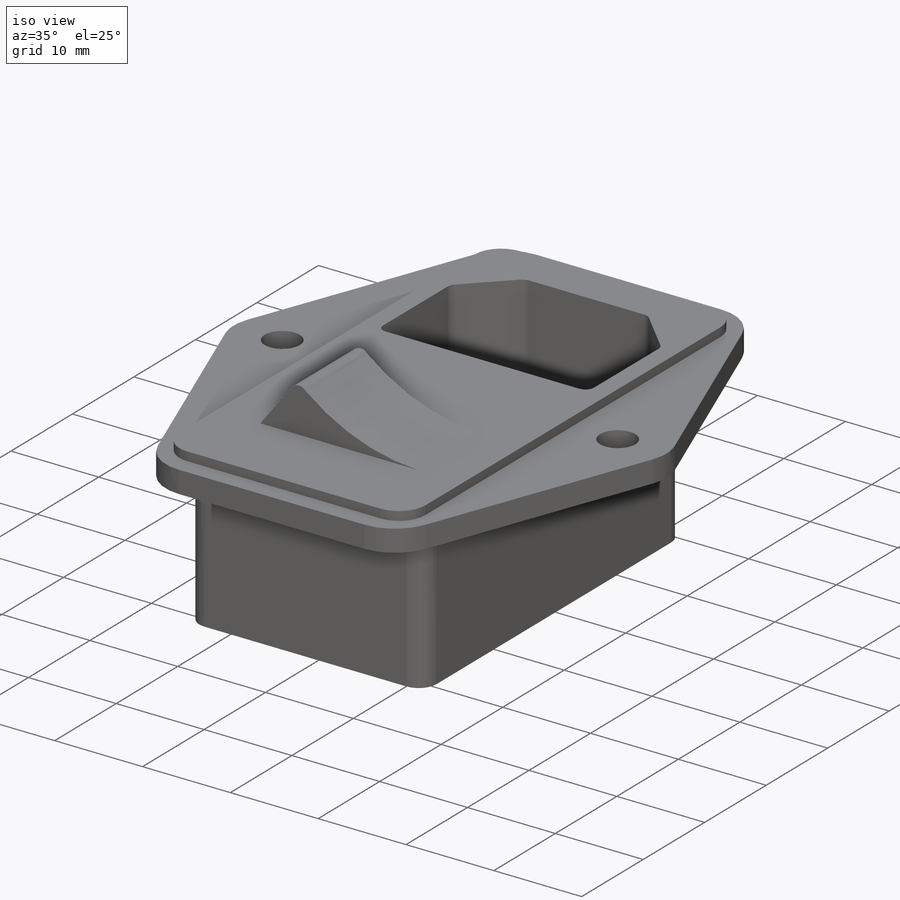
[diagram: iso view]
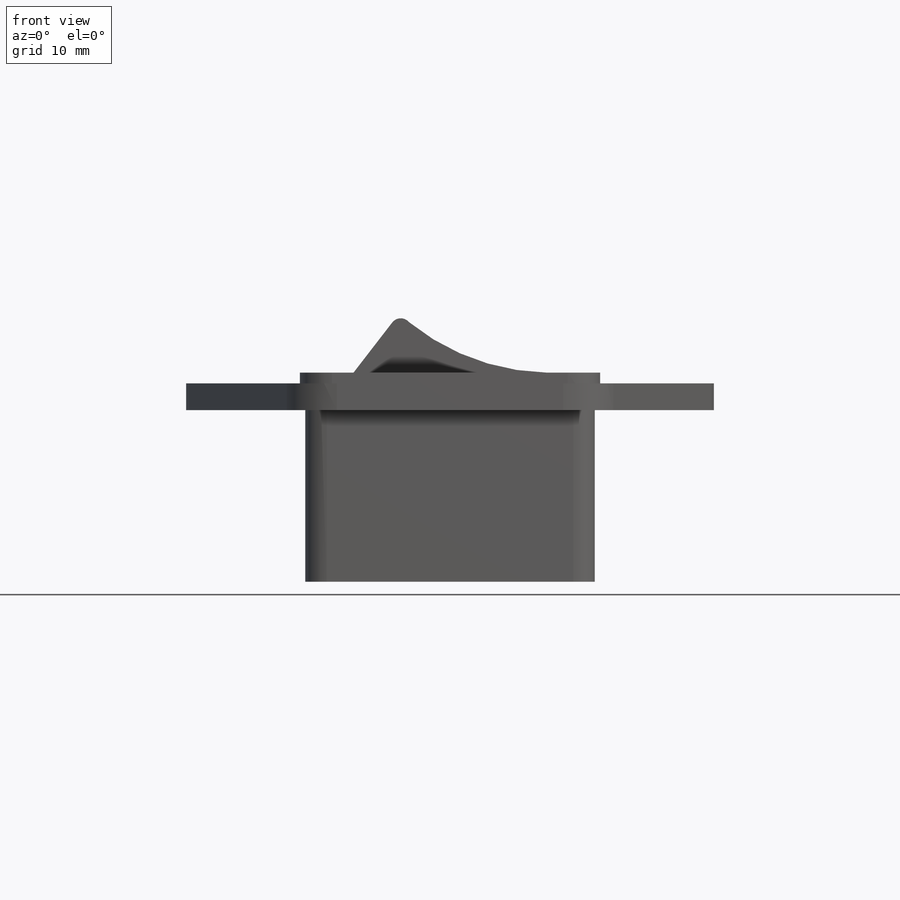
[diagram: front view]
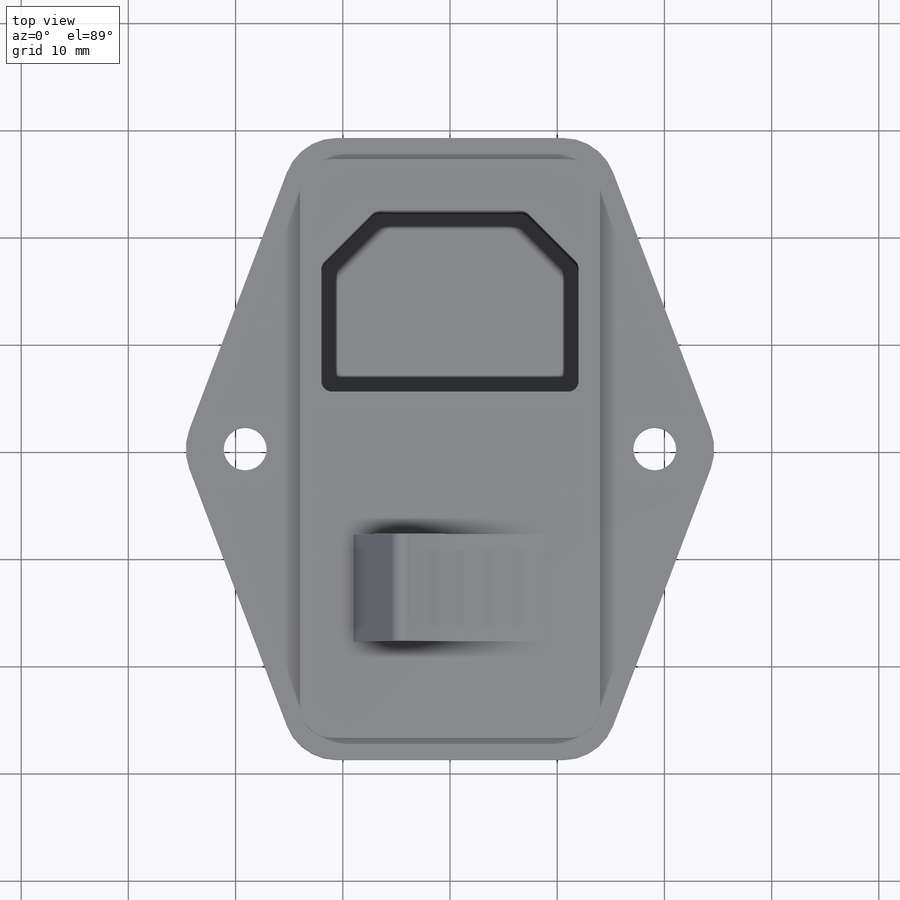
[diagram: top view]
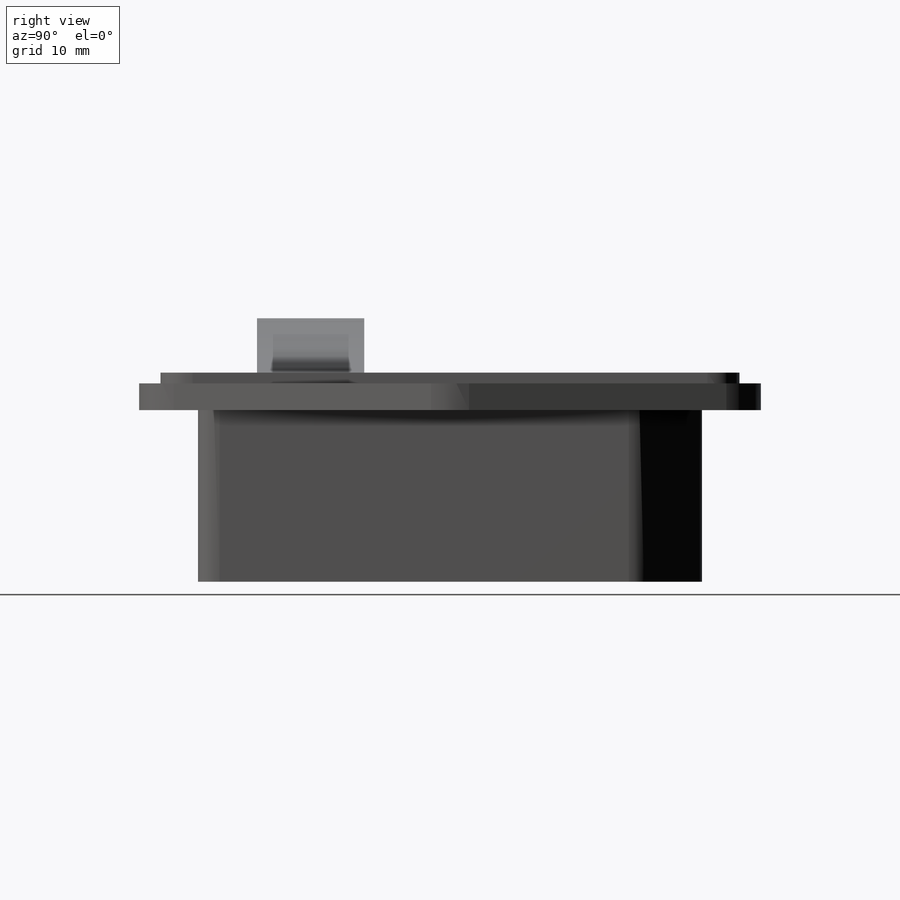
[diagram: right view]
SOLIDWORKS PART (.sldprt)
format: sldprt  version: not decoded by parser v0  size: 287,232 bytes
history: native  units: mm
features: sketch x5, extrude x4, fillet x3, material x1, cut_extrude x1, mirror x1 (+12 scaffold rows collapsed)
feature tree (27):
  scaffold x12  (default folders/planes/origin — collapsed)
  material  "Material <not specified>"
  sketch  "Sketch1"  dims[c1.D1=4.0mm c1.D2=~11.756223mm c2.D1=4.0mm c2.D2=38.2mm c2.D3=58.0mm c2.D4=28.0mm c2.D5=54.0mm c3.D4=28.0mm c3.D6=50.0mm c4.D4=14.0mm]
  extrude  "Boss-Extrude1"  Depth=2.5mm
  fillet  "Fillet1"  Radius=5mm
  sketch  "Sketch2"  dims[D3=3.0mm D1=54.0mm D2=14.0mm]
  extrude  "Boss-Extrude2"  Depth=1mm
  sketch  "Sketch3"  dims[c1.D1=47.0mm c1.D2=13.5mm c1.D3=7.5mm c1.D4=6.0mm c2.D1=47.0mm]
  extrude  "Boss-Extrude3"  Depth=16mm
  fillet  "Fillet2"  Radius=2mm
  sketch  "Sketch5"  dims[c1.D1=12.0mm c1.D2=16.5mm c1.D3=5.0mm c1.D4=5.0mm c2.D2=4.8mm c2.D5=16.9mm]
  cut_extrude  "Cut-Extrude1"  Depth=18mm
  fillet  "Fillet3"  Radius=1mm
  mirror  "Mirror1"
  sketch  "Sketch6"  dims[D1=1.0mm D2=18.0mm]
  extrude  "Boss-Extrude4"  Depth=10mm
decode coverage: 13 of 14 modeling features carry decoded parameters
note: ~ marks probable driven/reference dimensions
note: suppression state not decoded; provenance and decode notes live in map.json
